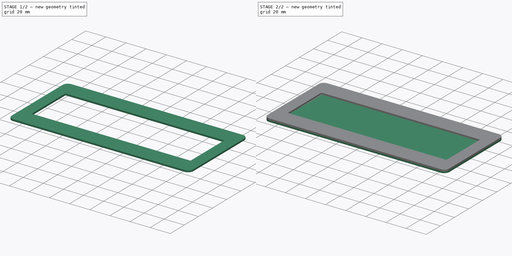
[diagram: build sequence overview — one tinted view per stage of 2, left to right]
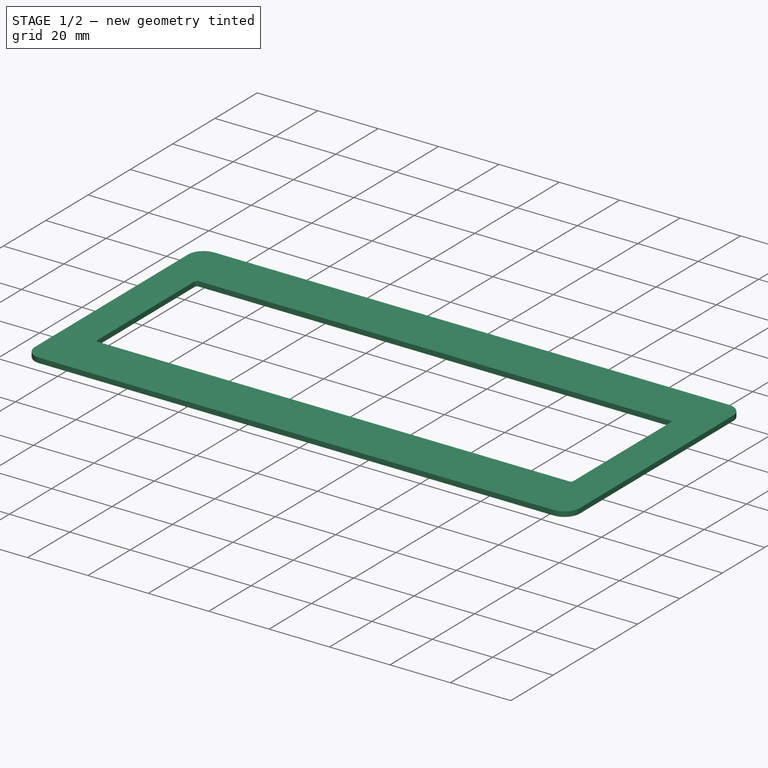
[diagram: stage 1 of 2 — iso view after this stage's code; geometry added in this stage tinted green]
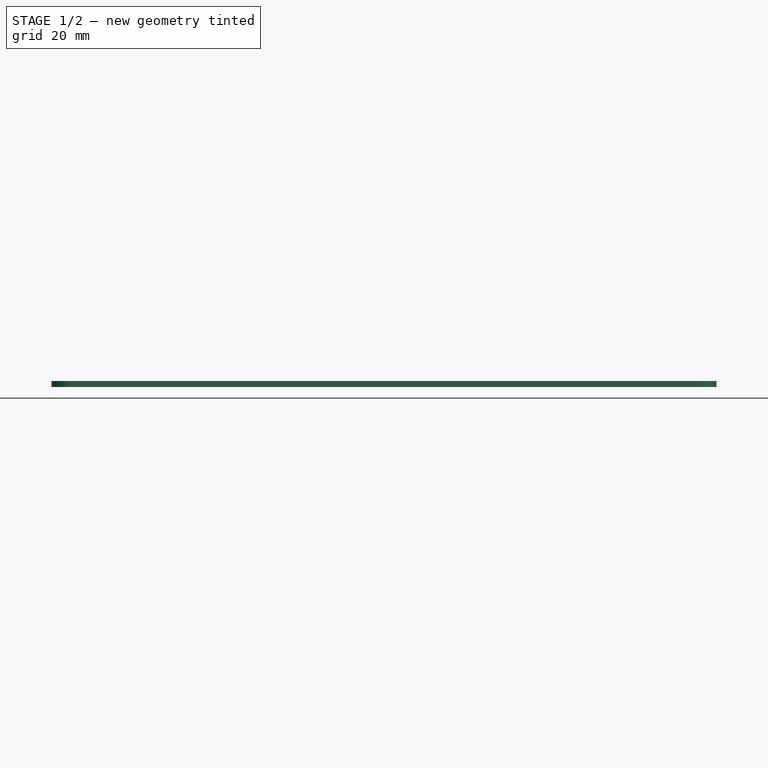
[diagram: stage 1 of 2 — front view after this stage's code; geometry added in this stage tinted green]
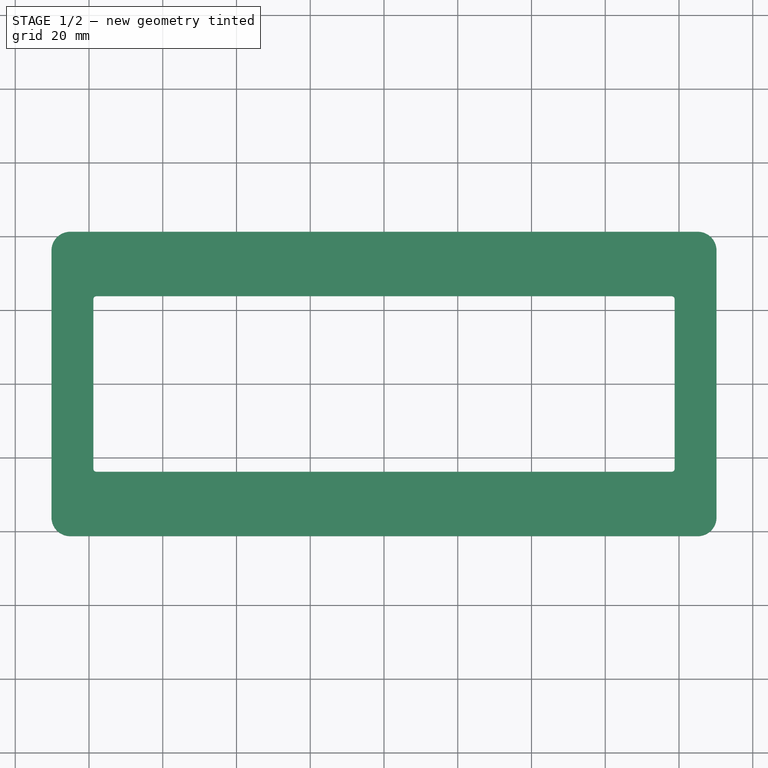
[diagram: stage 1 of 2 — top view after this stage's code; geometry added in this stage tinted green]
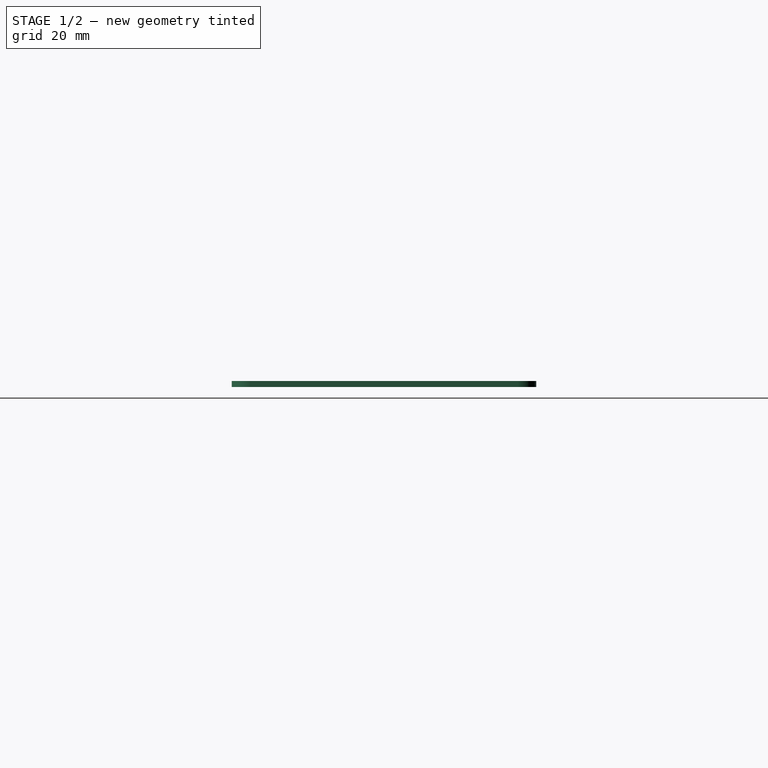
[diagram: stage 1 of 2 — right view after this stage's code; geometry added in this stage tinted green]
FCSTD DOCUMENT  (FreeCAD 0.20R29603 (Git))
Label: Stencil
License: All rights reserved
LicenseURL: http://en.wikipedia.org/wiki/All_rights_reserved
objects: Sketcher::SketchObject×2, PartDesign::Pad×2, PartDesign::Body×1
note: 7 computed .brp shape members not serialized (recipe doc carries the construction recipe); baked Part::Feature solids carry a one-line shape summary decoded from their .brp

FEATURE [Sketcher::SketchObject] Sketch
  FullyConstrained = true
  MapMode = 5
  Support = -> [XY_Plane]
  sketch-geometry (20):
    g0: ArcOfCircle CenterX=-85.09 CenterY=-36.195 CenterZ=0 NormalX=0 NormalY=0 NormalZ=1 AngleXU=0 Radius=5.08 StartAngle=3.14159 EndAngle=4.71239
    g1: LineSegment StartX=-90.17 StartY=-36.195 StartZ=0 EndX=-90.17 EndY=36.195 EndZ=0
    g2: ArcOfCircle CenterX=-85.09 CenterY=36.195 CenterZ=0 NormalX=0 NormalY=0 NormalZ=1 AngleXU=0 Radius=5.08 StartAngle=1.5708 EndAngle=3.14159
    g3: LineSegment StartX=-85.09 StartY=41.275 StartZ=0 EndX=85.09 EndY=41.275 EndZ=0
    g4: ArcOfCircle CenterX=85.09 CenterY=36.195 CenterZ=0 NormalX=0 NormalY=0 NormalZ=1 AngleXU=0 Radius=5.08 StartAngle=0 EndAngle=1.5708
    g5: LineSegment StartX=90.17 StartY=36.195 StartZ=0 EndX=90.17 EndY=-36.195 EndZ=0
    g6: ArcOfCircle CenterX=85.09 CenterY=-36.195 CenterZ=0 NormalX=0 NormalY=0 NormalZ=1 AngleXU=0 Radius=5.08 StartAngle=4.71239 EndAngle=6.28319
    g7: LineSegment StartX=85.09 StartY=-41.275 StartZ=0 EndX=-85.09 EndY=-41.275 EndZ=0
    g8: GeomPoint X=-90.17 Y=-41.275 Z=0
    g9: GeomPoint X=90.17 Y=41.275 Z=0
    g10: ArcOfCircle CenterX=-78.038 CenterY=-23.038 CenterZ=0 NormalX=0 NormalY=0 NormalZ=1 AngleXU=0 Radius=0.762 StartAngle=3.14159 EndAngle=4.71239
    g11: LineSegment StartX=-78.8 StartY=-23.038 StartZ=0 EndX=-78.8 EndY=23.038 EndZ=0
    g12: ArcOfCircle CenterX=-78.038 CenterY=23.038 CenterZ=0 NormalX=0 NormalY=0 NormalZ=1 AngleXU=0 Radius=0.762 StartAngle=1.5708 EndAngle=3.14159
    g13: LineSegment StartX=-78.038 StartY=23.8 StartZ=0 EndX=78.038 EndY=23.8 EndZ=0
    g14: ArcOfCircle CenterX=78.038 CenterY=23.038 CenterZ=0 NormalX=0 NormalY=0 NormalZ=1 AngleXU=0 Radius=0.762 StartAngle=3.91e-14 EndAngle=1.5708
    g15: LineSegment StartX=78.8 StartY=23.038 StartZ=0 EndX=78.8 EndY=-23.038 EndZ=0
    g16: ArcOfCircle CenterX=78.038 CenterY=-23.038 CenterZ=0 NormalX=0 NormalY=0 NormalZ=1 AngleXU=0 Radius=0.762 StartAngle=4.71239 EndAngle=6.28319
    g17: LineSegment StartX=78.038 StartY=-23.8 StartZ=0 EndX=-78.038 EndY=-23.8 EndZ=0
    g18: GeomPoint X=-78.8 Y=-23.8 Z=0
    g19: GeomPoint X=78.8 Y=23.8 Z=0
  constraints (46):
    c: Tangent(g0,g1) = 1.5708
    c: Tangent(g1,g2) = 1.5708
    c: Tangent(g2,g3) = 1.5708
    c: Tangent(g3,g4) = 1.5708
    c: Tangent(g4,g5) = 1.5708
    c: Tangent(g5,g6) = 1.5708
    c: Tangent(g6,g7) = 1.5708
    c: Tangent(g7,g0) = 1.5708
    c: Horizontal(g3)
    c: Horizontal(g7)
    c: Vertical(g1)
    c: Vertical(g5)
    c: Equal(g0,g2)
    c: Equal(g2,g4)
    c: Equal(g4,g6)
    c: PointOnObject(g8,g1)
    c: PointOnObject(g8,g7)
    c: PointOnObject(g9,g3)
    c: PointOnObject(g9,g5)
    c: Symmetric(g4,g0,g-1)
    c: Radius(g0) = 5.08
    c: Distance(g1,g5) = 180.34
    c: Distance(g2,g7) = 82.55
    c: Tangent(g10,g11) = 1.5708
    c: Tangent(g11,g12) = 1.5708
    c: Tangent(g12,g13) = 1.5708
    c: Tangent(g13,g14) = 1.5708
    c: Tangent(g14,g15) = 1.5708
    c: Tangent(g15,g16) = 1.5708
    c: Tangent(g16,g17) = 1.5708
    c: Tangent(g17,g10) = 1.5708
    c: Horizontal(g13)
    c: Horizontal(g17)
    c: Vertical(g11)
    c: Vertical(g15)
    c: Equal(g10,g12)
    c: Equal(g12,g14)
    c: Equal(g14,g16)
    c: PointOnObject(g18,g11)
    c: PointOnObject(g18,g17)
    c: PointOnObject(g19,g13)
    c: PointOnObject(g19,g15)
    c: Symmetric(g14,g10,g-1)
    c: Radius(g12) = 0.762
    c: Distance(g10,g15) = 157.6
    c: Distance(g10,g13) = 47.6
FEATURE [PartDesign::Pad] Pad
  Direction = (0,0,1)
  Length = 1.65
  Length2 = 10
  Profile = -> Sketch
  ReferenceAxis = -> Sketch [N_Axis]
  Type = 0
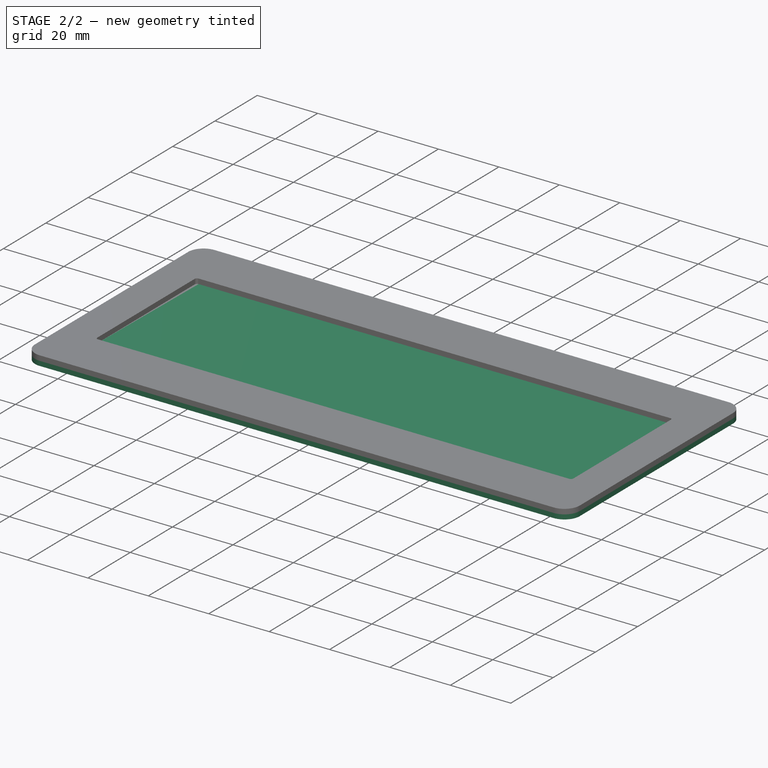
[diagram: stage 2 of 2 — iso view after this stage's code; geometry added in this stage tinted green]
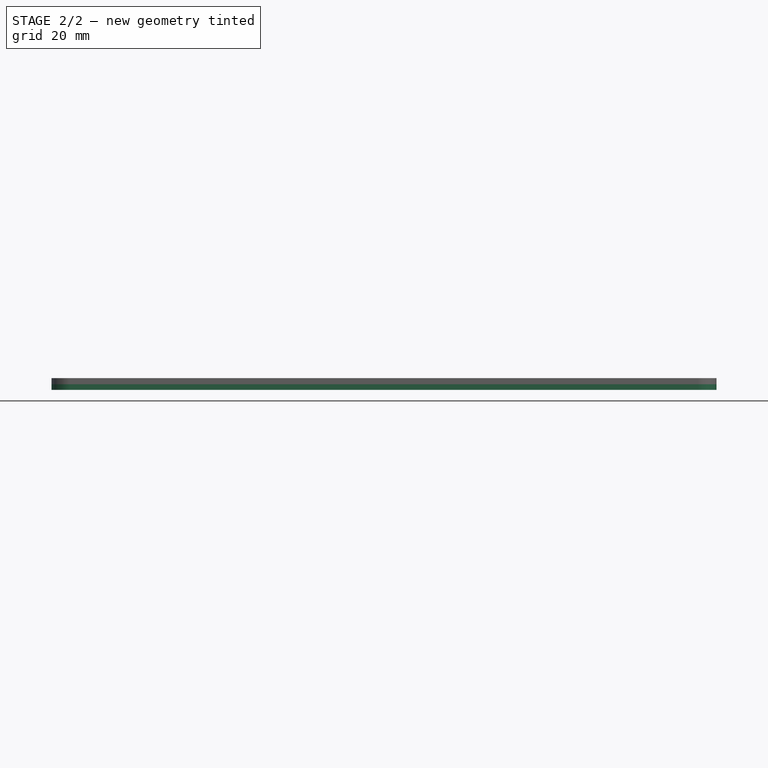
[diagram: stage 2 of 2 — front view after this stage's code; geometry added in this stage tinted green]
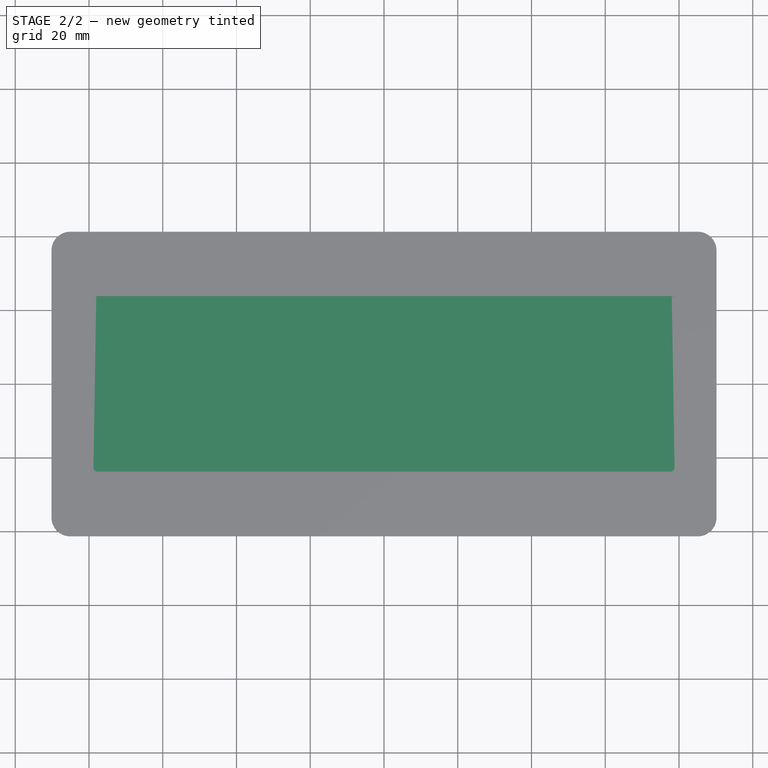
[diagram: stage 2 of 2 — top view after this stage's code; geometry added in this stage tinted green]
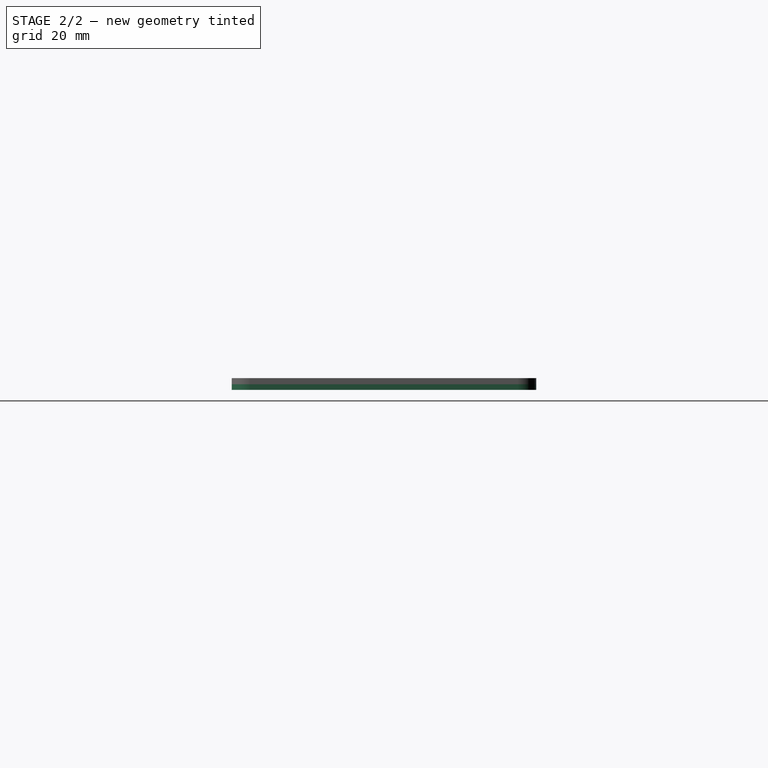
[diagram: stage 2 of 2 — right view after this stage's code; geometry added in this stage tinted green]
FEATURE [Sketcher::SketchObject] Sketch001
  ExternalGeometry = -> [Pad]
  FullyConstrained = true
  MapMode = 5
  Placement = pos=(0,0,0) rot=(1,0,0;3.14159rad)
  Support = -> [Pad]
  sketch-geometry (10):
    g0: ArcOfCircle CenterX=-85.09 CenterY=-36.195 CenterZ=0 NormalX=0 NormalY=0 NormalZ=1 AngleXU=0 Radius=5.08 StartAngle=3.14159 EndAngle=4.71239
    g1: LineSegment StartX=-90.17 StartY=-36.195 StartZ=0 EndX=-90.17 EndY=36.195 EndZ=0
    g2: ArcOfCircle CenterX=-85.09 CenterY=36.195 CenterZ=0 NormalX=0 NormalY=0 NormalZ=1 AngleXU=0 Radius=5.08 StartAngle=1.5708 EndAngle=3.14159
    g3: LineSegment StartX=-85.09 StartY=41.275 StartZ=0 EndX=85.09 EndY=41.275 EndZ=0
    g4: ArcOfCircle CenterX=85.09 CenterY=36.195 CenterZ=0 NormalX=0 NormalY=0 NormalZ=1 AngleXU=0 Radius=5.08 StartAngle=3.6e-15 EndAngle=1.5708
    g5: LineSegment StartX=90.17 StartY=36.195 StartZ=0 EndX=90.17 EndY=-36.195 EndZ=0
    g6: ArcOfCircle CenterX=85.09 CenterY=-36.195 CenterZ=0 NormalX=0 NormalY=0 NormalZ=1 AngleXU=0 Radius=5.08 StartAngle=4.71239 EndAngle=6.28319
    g7: LineSegment StartX=85.09 StartY=-41.275 StartZ=0 EndX=-85.09 EndY=-41.275 EndZ=0
    g8: GeomPoint X=-90.17 Y=-41.275 Z=0
    g9: GeomPoint X=90.17 Y=41.275 Z=0
  constraints (22):
    c: Tangent(g0,g1) = 1.5708
    c: Tangent(g1,g2) = 1.5708
    c: Tangent(g2,g3) = 1.5708
    c: Tangent(g3,g4) = 1.5708
    c: Tangent(g4,g5) = 1.5708
    c: Tangent(g5,g6) = 1.5708
    c: Tangent(g6,g7) = 1.5708
    c: Tangent(g7,g0) = 1.5708
    c: Horizontal(g3)
    c: Horizontal(g7)
    c: Vertical(g1)
    c: Vertical(g5)
    c: Equal(g0,g2)
    c: Equal(g2,g4)
    c: Equal(g4,g6)
    c: PointOnObject(g8,g1)
    c: PointOnObject(g8,g7)
    c: PointOnObject(g9,g3)
    c: PointOnObject(g9,g5)
    c: Coincident(g4,g-3)
    c: Coincident(g-4,g0)
    c: Equal(g4,g-3)
FEATURE [PartDesign::Pad] Pad001
  BaseFeature = -> Pad
  Direction = (0,0,-1)
  Length = 1.524
  Length2 = 10
  Profile = -> Sketch001
  ReferenceAxis = -> Sketch001 [N_Axis]
  Type = 0
FEATURE [PartDesign::Body] Body  label="StencilBody"
  Group = -> [Sketch,Pad,Sketch001,Pad001]
  Origin = -> Origin
  Tip = -> Pad001
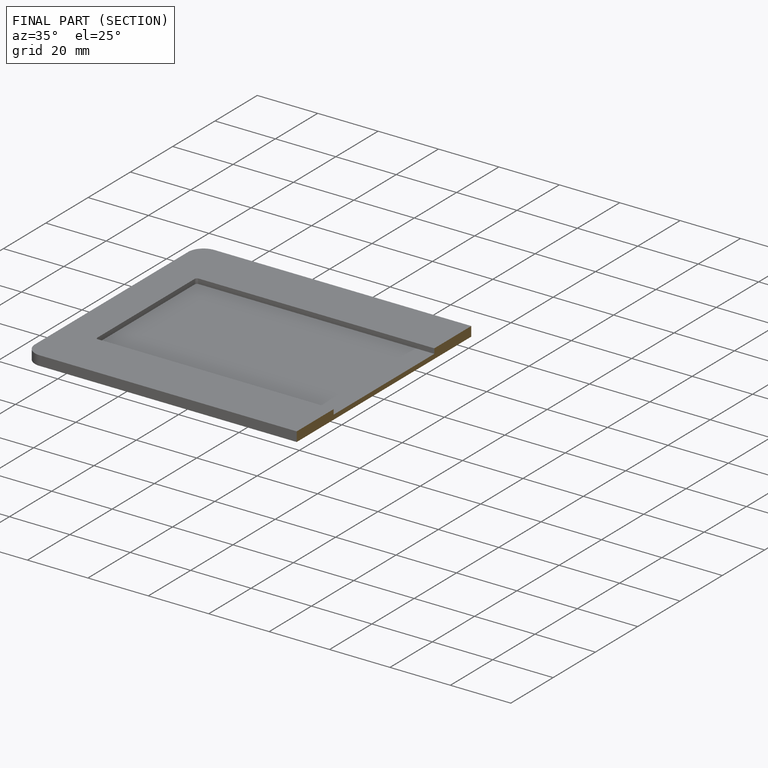
[diagram: finished part — half-section view (interior)]
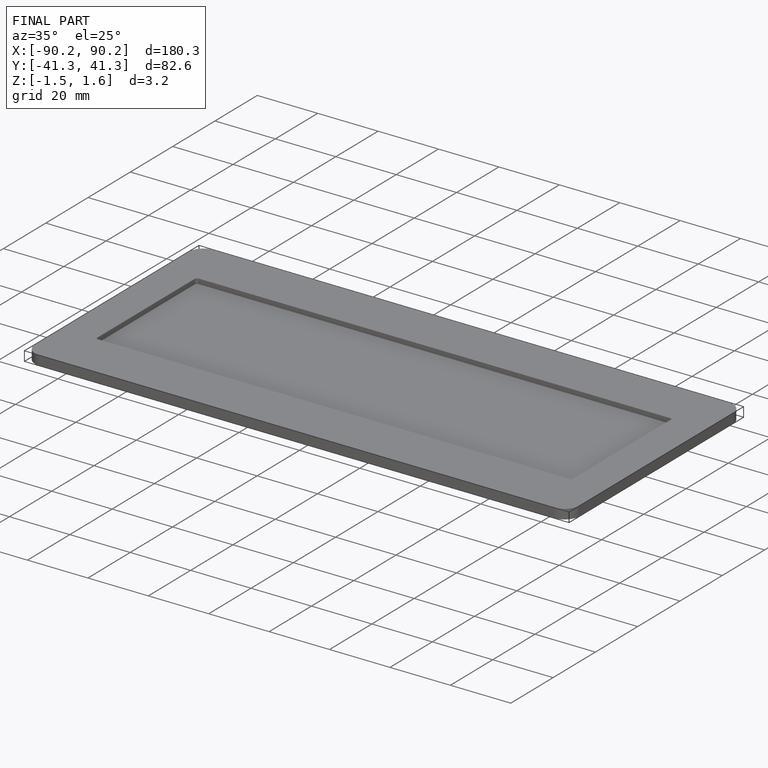
[diagram: finished part — iso view with bounding-box wireframe]
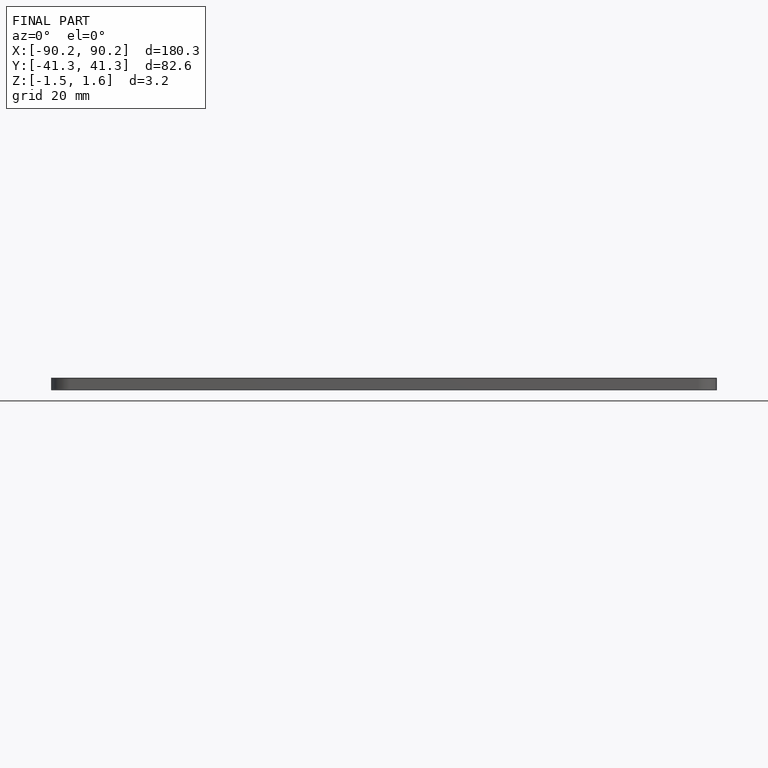
[diagram: finished part — front view with bounding-box wireframe]
